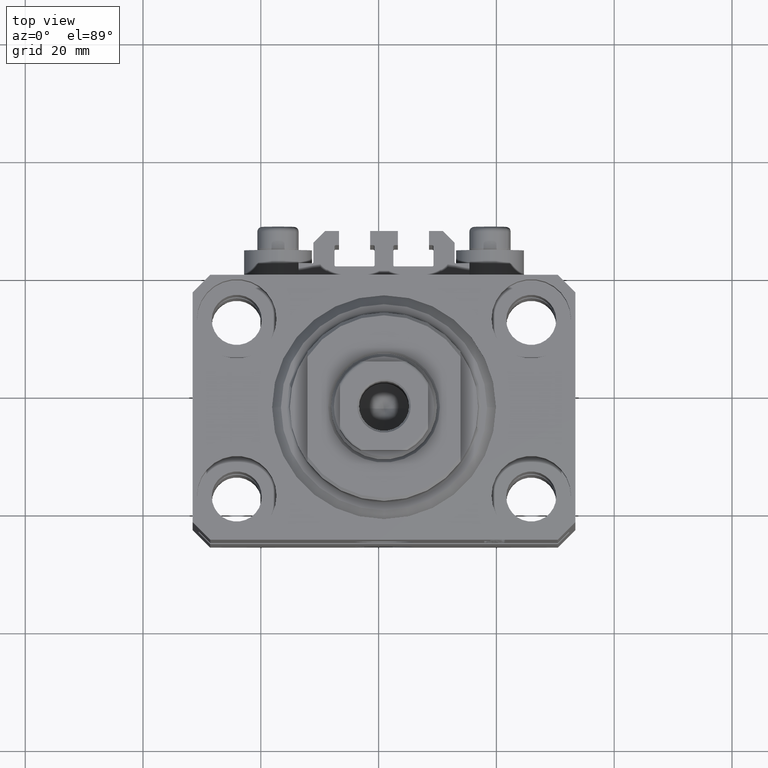
[diagram: clean part render]
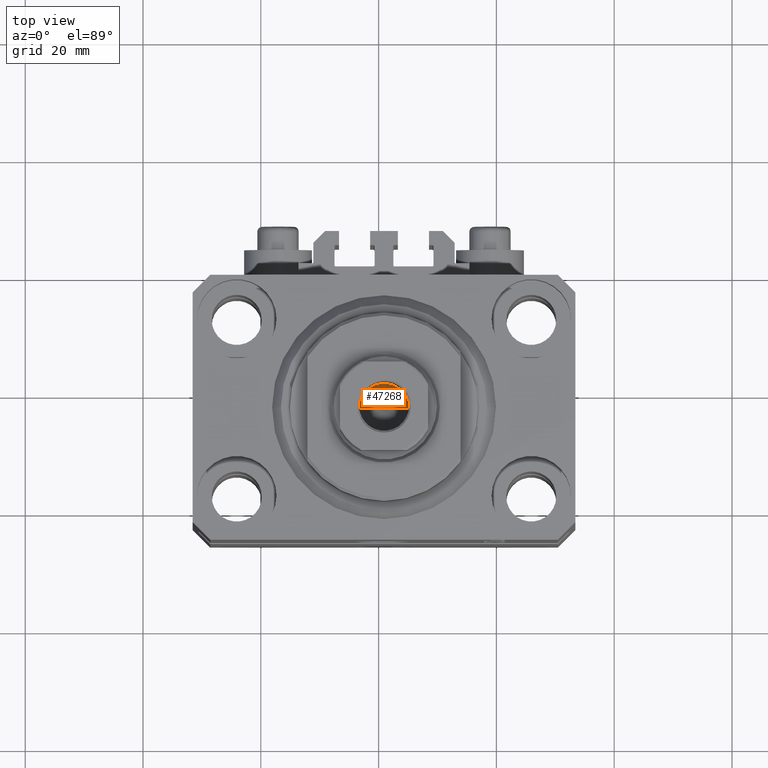
[diagram: same view with one face highlighted and labeled with its STEP entity id]
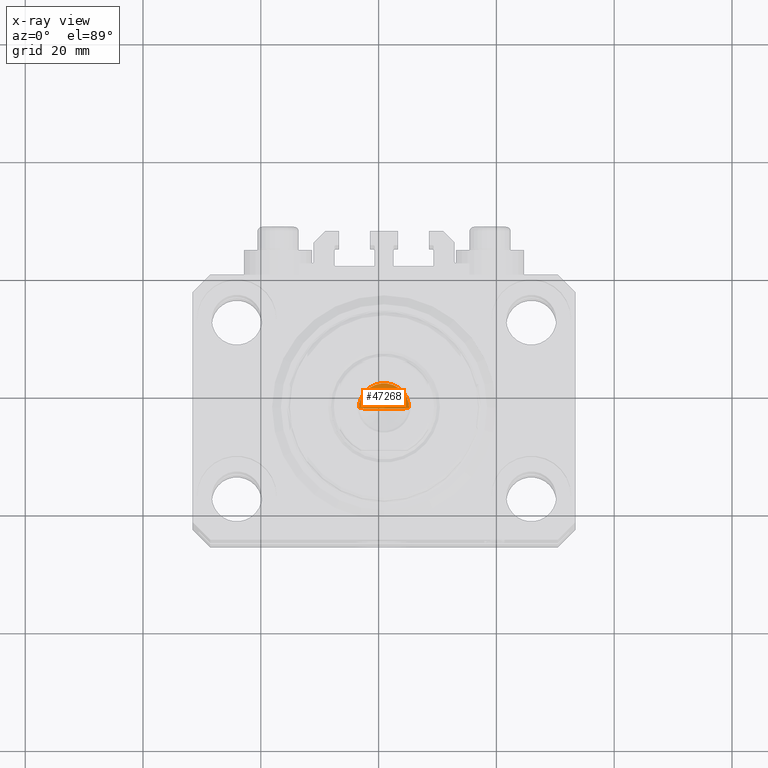
[diagram: x-ray of the same camera — body ghosted, the highlighted face saturated]
A machine part, top view. The second image highlights one B-rep face of the part: STEP entity #47268.
The next image is the same camera in x-ray: the body ghosted, the highlighted face saturated — about 0% of this face is hidden behind the body in this view.
In plain terms, the highlighted conical surface has half-angle 59 deg.
Its self-contained STEP definition (entity closure, byte-faithful):
#3620 = VERTEX_POINT ( 'NONE', #28723 ) ;
#5573 = VECTOR ( 'NONE', #18321, 1000.000000000000000 ) ;
#5838 = CONICAL_SURFACE ( 'NONE', #16641, 4.249999999999994671, 1.029744258676653423 ) ;
#10013 = CARTESIAN_POINT ( 'NONE',  ( 0.000000000000000000, 0.000000000000000000, 59.10000000000000853 ) ) ;
#10614 = LINE ( 'NONE', #17849, #5573 ) ;
#11984 = VERTEX_POINT ( 'NONE', #17673 ) ;
#14020 = LINE ( 'NONE', #43446, #14774 ) ;
#14774 = VECTOR ( 'NONE', #20313, 1000.000000000000000 ) ;
#15271 = ORIENTED_EDGE ( 'NONE', *, *, #19041, .T. ) ;
#16641 = AXIS2_PLACEMENT_3D ( 'NONE', #30157, #41728, #41023 ) ;
#17489 = DIRECTION ( 'NONE',  ( -0.000000000000000000, -0.000000000000000000, 1.000000000000000000 ) ) ;
#17673 = CARTESIAN_POINT ( 'NONE',  ( 4.249999999999994671, 0.000000000000000000, 59.10000000000000853 ) ) ;
#17849 = CARTESIAN_POINT ( 'NONE',  ( -4.249999999999994671, 5.204748896376244783E-16, 59.10000000000000853 ) ) ;
#18321 = DIRECTION ( 'NONE',  ( -0.8571673007021117785, 1.049727191138617956E-16, 0.5150380749100550437 ) ) ;
#19041 = EDGE_CURVE ( 'NONE', #35513, #11984, #14020, .T. ) ;
#20313 = DIRECTION ( 'NONE',  ( 0.8571673007021117785, 0.000000000000000000, 0.5150380749100550437 ) ) ;
#23343 = ORIENTED_EDGE ( 'NONE', *, *, #24597, .T. ) ;
#24597 = EDGE_CURVE ( 'NONE', #11984, #3620, #24887, .T. ) ;
#24887 = CIRCLE ( 'NONE', #44903, 4.249999999999994671 ) ;
#25195 = DIRECTION ( 'NONE',  ( 1.000000000000000000, 0.000000000000000000, 0.000000000000000000 ) ) ;
#25864 = EDGE_LOOP ( 'NONE', ( #37128, #15271, #23343 ) ) ;
#28723 = CARTESIAN_POINT ( 'NONE',  ( -4.249999999999994671, 5.204748896376244783E-16, 59.10000000000000853 ) ) ;
#30157 = CARTESIAN_POINT ( 'NONE',  ( 0.000000000000000000, 0.000000000000000000, 59.10000000000000853 ) ) ;
#35365 = EDGE_CURVE ( 'NONE', #35513, #3620, #10614, .T. ) ;
#35513 = VERTEX_POINT ( 'NONE', #45321 ) ;
#37128 = ORIENTED_EDGE ( 'NONE', *, *, #35365, .F. ) ;
#38108 = FACE_OUTER_BOUND ( 'NONE', #25864, .T. ) ;
#41023 = DIRECTION ( 'NONE',  ( 1.000000000000000000, 0.000000000000000000, 0.000000000000000000 ) ) ;
#41728 = DIRECTION ( 'NONE',  ( -0.000000000000000000, -0.000000000000000000, 1.000000000000000000 ) ) ;
#43446 = CARTESIAN_POINT ( 'NONE',  ( 4.249999999999994671, 0.000000000000000000, 59.10000000000000853 ) ) ;
#44903 = AXIS2_PLACEMENT_3D ( 'NONE', #10013, #17489, #25195 ) ;
#45321 = CARTESIAN_POINT ( 'NONE',  ( -6.748699724488696097E-15, 0.000000000000000000, 56.54634236913287992 ) ) ;
#47268 = ADVANCED_FACE ( 'NONE', ( #38108 ), #5838, .F. ) ;